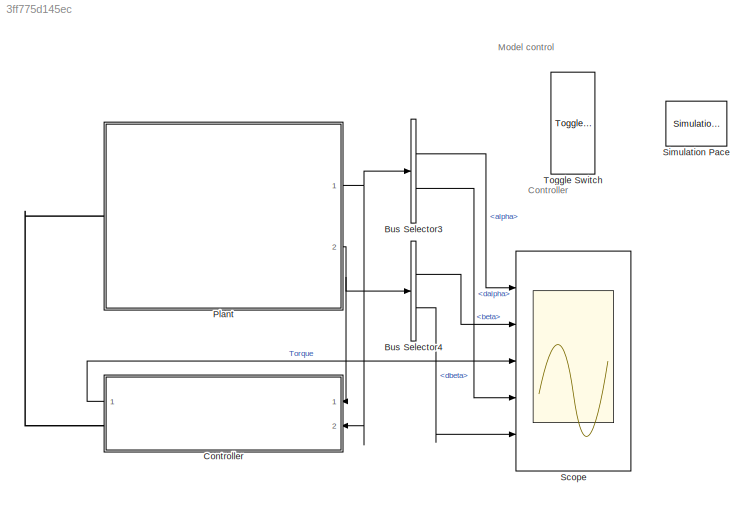
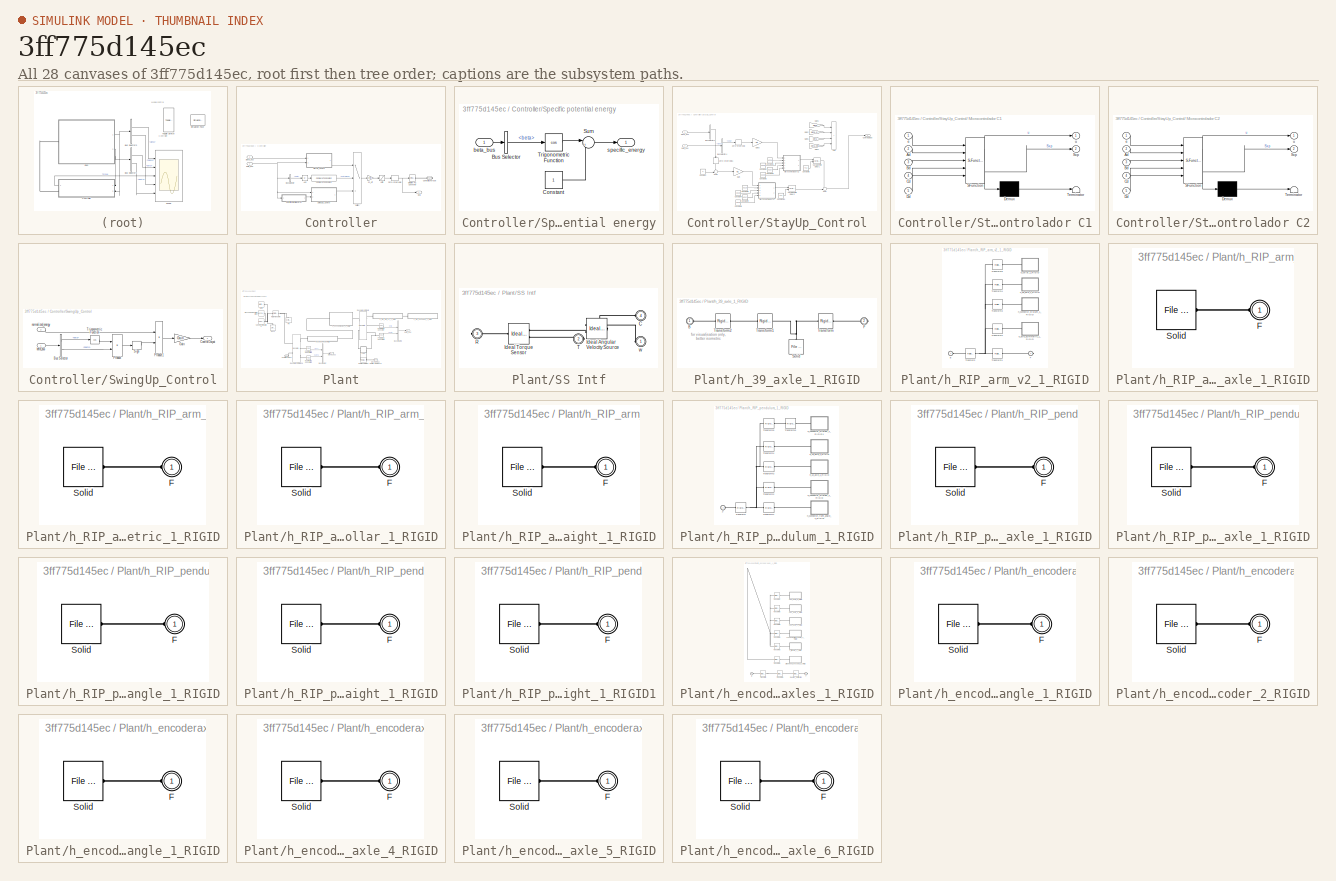
[diagram: thumbnail index - all 28 canvases of the model, root first then tree order]
MODEL slx_3ff775d145ec
KIND model
CONFIG AbsTol = auto
CONFIG EnableMultiTasking = on
CONFIG FixedStep = auto
CONFIG MaxStep = 1e-3
CONFIG MinStep = auto
CONFIG PreLoadFcn = RotaryPendulum_PARAM
CONFIG RelTol = 1e-3
CONFIG SampleTimeConstraint = Unconstrained
CONFIG Solver = ode15s
CONFIG SolverName = ode15s
CONFIG StartTime = 0.0
CONFIG StopTime = 60
BLOCK [BusSelector] Bus Selector3
  OutputSignals = alpha,dalpha
  Ports = [1, 2]
BLOCK [BusSelector] Bus Selector4
  OutputSignals = beta,dbeta
  Ports = [1, 2]
BLOCK [SubSystem] Controller
  Ports = [2, 1, 0, 0, 0, 0, 1]
  RequestExecContextInheritance = off
BLOCK [Abs] Controller/Abs
  SaturateOnIntegerOverflow = off
BLOCK [BusSelector] Controller/Bus Selector
  OutputSignals = beta
  Ports = [1, 1]
BLOCK [Reference] Controller/Compare To Constant  REF=simulink/Logic and Bit
Operations/Compare
To Constant
  Ports = [1, 1]
  SourceBlock = simulink/Logic and Bit\nOperations/Compare\nTo Constant
  SourceProductBaseCode = SL
  SourceType = Compare To Constant
BLOCK [PMIOPort] Controller/ControlledTorque
  Side = Right
BLOCK [Saturate] Controller/Limit
  LowerLimit = -0.1e3
  UpperLimit = 0.1e3
BLOCK [Outport] Controller/Out1
  VectorParamsAs1DForOutWhenUnconnected = off
BLOCK [Reference] Controller/Simulink-PS Converter  REF=nesl_utility/Simulink-PS
Converter
  Ports = [1, 0, 0, 0, 0, 0, 1]
  SourceBlock = nesl_utility/Simulink-PS\nConverter
  SourceProductBaseCode = SS
  SourceType = Simulink-PS\nConverter
BLOCK [SubSystem] Controller/Specific potential energy
  Ports = [1, 1]
  RequestExecContextInheritance = off
BLOCK [BusSelector] Controller/Specific potential energy/Bus Selector
  OutputSignals = beta
  Ports = [1, 1]
BLOCK [Constant] Controller/Specific potential energy/Constant
BLOCK [Sum] Controller/Specific potential energy/Sum
  Inputs = |+-
  Ports = [2, 1]
BLOCK [Trigonometry] Controller/Specific potential energy/Trigonometric Function
  Operator = cos
  Ports = [1, 1]
BLOCK [Inport] Controller/Specific potential energy/beta_bus
BLOCK [Outport] Controller/Specific potential energy/specific_energy
  VectorParamsAs1DForOutWhenUnconnected = off
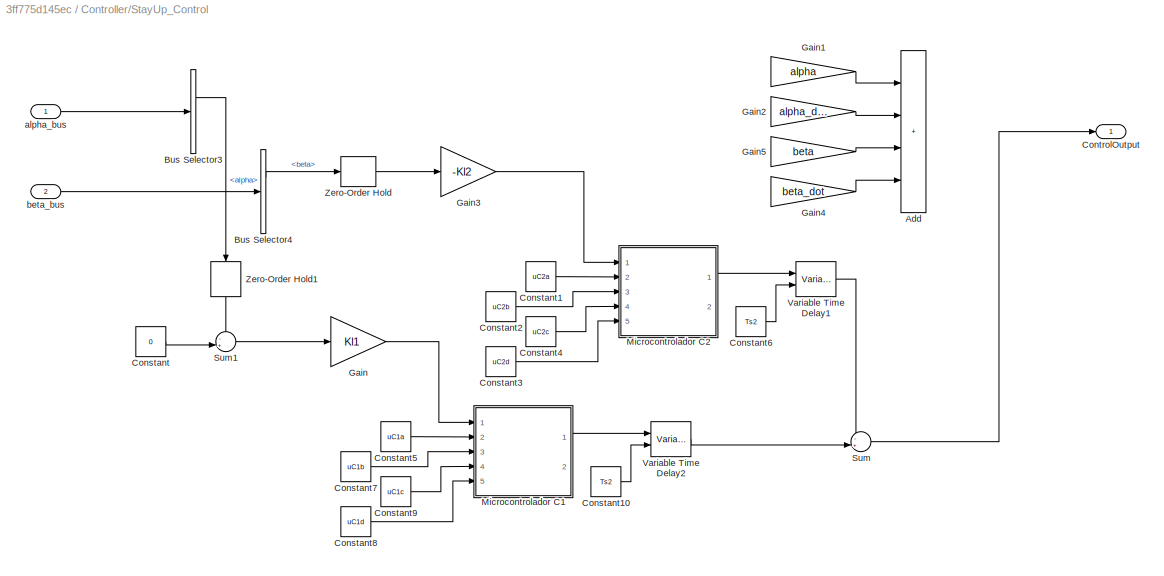
BLOCK [SubSystem] Controller/StayUp_Control
  Ports = [2, 1]
  RequestExecContextInheritance = off
BLOCK [SubSystem] Controller/StayUp_Control/ Microcontrolador C1
  ErrorFcn = Stateflow.Translate.translate
  NameLocation = top
  PermitHierarchicalResolution = ExplicitOnly
  Ports = [5, 2]
  RequestExecContextInheritance = off
  SFBlockType = MATLAB Function
  SystemSampleTime = Ts2
  TreatAsAtomicUnit = on
BLOCK [Demux] Controller/StayUp_Control/ Microcontrolador C1/ Demux 
  Outputs = 1
  Ports = [1, 1]
BLOCK [S-Function] Controller/StayUp_Control/ Microcontrolador C1/ SFunction 
  EnableBusSupport = on
  FunctionName = sf_sfun
  PortCounts = [5 3]
  Ports = [5, 3]
  SFcnIsStateOwnerBlock = off
  SFunctionDeploymentMode = off
  Tag = Stateflow S-Function 1
BLOCK [Terminator] Controller/StayUp_Control/ Microcontrolador C1/ Terminator 
BLOCK [Inport] Controller/StayUp_Control/ Microcontrolador C1/Ad
  Port = 2
BLOCK [Inport] Controller/StayUp_Control/ Microcontrolador C1/Bd
  Port = 3
BLOCK [Inport] Controller/StayUp_Control/ Microcontrolador C1/Cd
  Port = 4
BLOCK [Inport] Controller/StayUp_Control/ Microcontrolador C1/Dd
  Port = 5
BLOCK [Outport] Controller/StayUp_Control/ Microcontrolador C1/Sxp
  Port = 2
BLOCK [Inport] Controller/StayUp_Control/ Microcontrolador C1/e
BLOCK [Outport] Controller/StayUp_Control/ Microcontrolador C1/u
BLOCK [SubSystem] Controller/StayUp_Control/ Microcontrolador C2
  ErrorFcn = Stateflow.Translate.translate
  NameLocation = top
  PermitHierarchicalResolution = ExplicitOnly
  Ports = [5, 2]
  RequestExecContextInheritance = off
  SFBlockType = MATLAB Function
  SystemSampleTime = Ts2
  TreatAsAtomicUnit = on
BLOCK [Demux] Controller/StayUp_Control/ Microcontrolador C2/ Demux 
  Outputs = 1
  Ports = [1, 1]
BLOCK [S-Function] Controller/StayUp_Control/ Microcontrolador C2/ SFunction 
  EnableBusSupport = on
  FunctionName = sf_sfun
  PortCounts = [5 3]
  Ports = [5, 3]
  SFcnIsStateOwnerBlock = off
  SFunctionDeploymentMode = off
  Tag = Stateflow S-Function 2
BLOCK [Terminator] Controller/StayUp_Control/ Microcontrolador C2/ Terminator 
BLOCK [Inport] Controller/StayUp_Control/ Microcontrolador C2/Ad
  Port = 2
BLOCK [Inport] Controller/StayUp_Control/ Microcontrolador C2/Bd
  Port = 3
BLOCK [Inport] Controller/StayUp_Control/ Microcontrolador C2/Cd
  Port = 4
BLOCK [Inport] Controller/StayUp_Control/ Microcontrolador C2/Dd
  Port = 5
BLOCK [Outport] Controller/StayUp_Control/ Microcontrolador C2/Sxp
  Port = 2
BLOCK [Inport] Controller/StayUp_Control/ Microcontrolador C2/e
BLOCK [Outport] Controller/StayUp_Control/ Microcontrolador C2/u
BLOCK [Sum] Controller/StayUp_Control/Add
  IconShape = rectangular
  Inputs = ++++
  Ports = [4, 1]
BLOCK [BusSelector] Controller/StayUp_Control/Bus Selector3
  OutputSignals = alpha,dalpha
  Ports = [1, 2]
BLOCK [BusSelector] Controller/StayUp_Control/Bus Selector4
  OutputSignals = beta,dbeta
  Ports = [1, 2]
BLOCK [Constant] Controller/StayUp_Control/Constant
  Value = 0
BLOCK [Constant] Controller/StayUp_Control/Constant1
  Value = uC2a
BLOCK [Constant] Controller/StayUp_Control/Constant10
  Value = Ts2
BLOCK [Constant] Controller/StayUp_Control/Constant2
  Value = uC2b
BLOCK [Constant] Controller/StayUp_Control/Constant3
  Value = uC2d
BLOCK [Constant] Controller/StayUp_Control/Constant4
  Value = uC2c
BLOCK [Constant] Controller/StayUp_Control/Constant5
  Value = uC1a
BLOCK [Constant] Controller/StayUp_Control/Constant6
  Value = Ts2
BLOCK [Constant] Controller/StayUp_Control/Constant7
  Value = uC1b
BLOCK [Constant] Controller/StayUp_Control/Constant8
  Value = uC1d
BLOCK [Constant] Controller/StayUp_Control/Constant9
  Value = uC1c
BLOCK [Outport] Controller/StayUp_Control/ControlOutput
  VectorParamsAs1DForOutWhenUnconnected = off
BLOCK [Gain] Controller/StayUp_Control/Gain
  Gain = Kl1
BLOCK [Gain] Controller/StayUp_Control/Gain1
  Gain = alpha
BLOCK [Gain] Controller/StayUp_Control/Gain2
  Gain = alpha_dot
  NameLocation = top
BLOCK [Gain] Controller/StayUp_Control/Gain3
  Gain = -Kl2
BLOCK [Gain] Controller/StayUp_Control/Gain4
  Gain = beta_dot
BLOCK [Gain] Controller/StayUp_Control/Gain5
  Gain = beta
BLOCK [Sum] Controller/StayUp_Control/Sum
  Inputs = -+|
  Ports = [2, 1]
BLOCK [Sum] Controller/StayUp_Control/Sum1
  Inputs = -+|
  Ports = [2, 1]
BLOCK [VariableTransportDelay] Controller/StayUp_Control/Variable Time Delay1
  MaximumDelay = 10
  Ports = [2, 1]
BLOCK [VariableTransportDelay] Controller/StayUp_Control/Variable Time Delay2
  MaximumDelay = 10
  Ports = [2, 1]
BLOCK [ZeroOrderHold] Controller/StayUp_Control/Zero-Order Hold
  SampleTime = Ts2
BLOCK [ZeroOrderHold] Controller/StayUp_Control/Zero-Order Hold1
  NameLocation = left
  SampleTime = Ts2
BLOCK [Inport] Controller/StayUp_Control/alpha_bus
BLOCK [Inport] Controller/StayUp_Control/beta_bus
  NameLocation = top
  Port = 2
BLOCK [SubSystem] Controller/SwingUp_Control
  Ports = [2, 1]
  RequestExecContextInheritance = off
BLOCK [BusSelector] Controller/SwingUp_Control/Bus Selector
  OutputSignals = beta,dbeta
  Ports = [1, 2]
BLOCK [Outport] Controller/SwingUp_Control/ControlOutput
  VectorParamsAs1DForOutWhenUnconnected = off
BLOCK [Gain] Controller/SwingUp_Control/Gain
  Gain = Gain
BLOCK [Product] Controller/SwingUp_Control/Product
  Ports = [2, 1]
BLOCK [Product] Controller/SwingUp_Control/Product1
  Ports = [2, 1]
BLOCK [Signum] Controller/SwingUp_Control/Sign
BLOCK [Trigonometry] Controller/SwingUp_Control/Trigonometric Function
  Operator = cos
  Ports = [1, 1]
BLOCK [Inport] Controller/SwingUp_Control/beta_bus
BLOCK [Inport] Controller/SwingUp_Control/normalized_energy
  Port = 2
BLOCK [Switch] Controller/Switch
  Criteria = u2 > Threshold
  InputSameDT = off
  SaturateOnIntegerOverflow = off
BLOCK [ZeroOrderHold] Controller/Zero-Order Hold
  SampleTime = Ts2
BLOCK [Inport] Controller/alpha_bus
  Port = 2
BLOCK [Inport] Controller/beta_bus
BLOCK [Gain] Controller/on_off
  Gain = controller_on_off
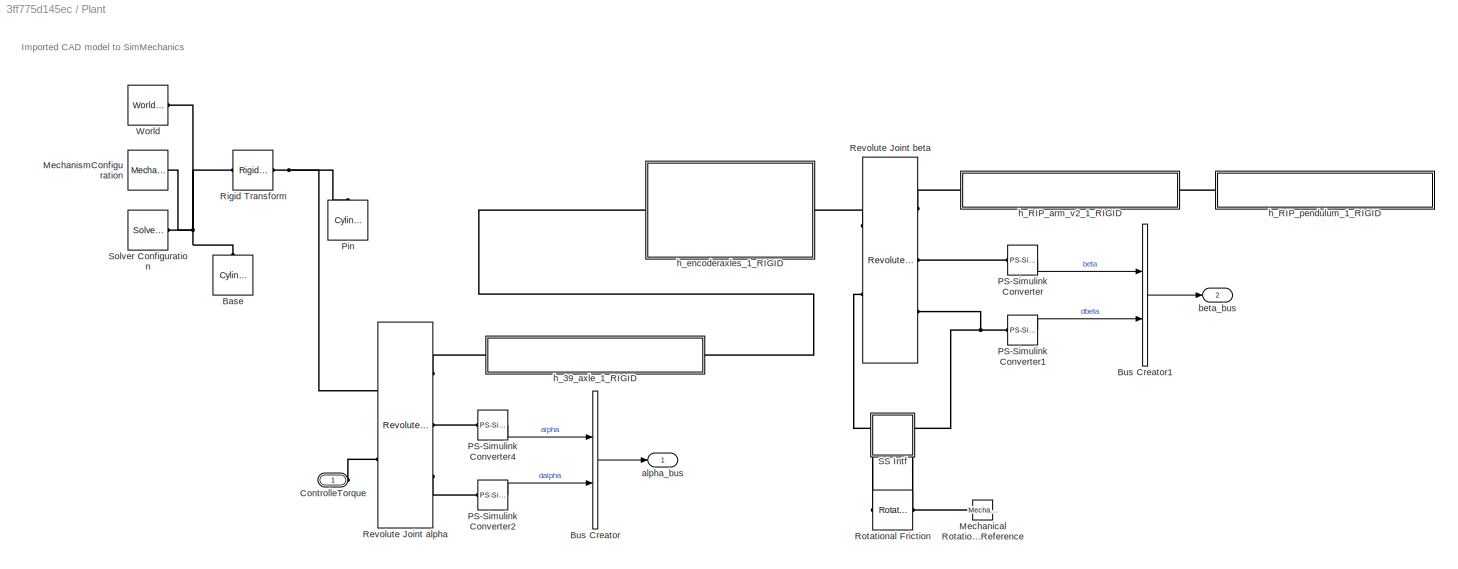
BLOCK [SubSystem] Plant
  Ports = [0, 2, 0, 0, 0, 1]
  RequestExecContextInheritance = off
BLOCK [Reference] Plant/Base  REF=sm_lib/Body Elements/Cylindrical Solid
  NameLocation = right
  Ports = [0, 0, 0, 0, 0, 0, 1]
  SourceBlock = sm_lib/Body Elements/Cylindrical Solid
  SourceProductBaseCode = MS
  SourceType = Cylindrical Solid
BLOCK [BusCreator] Plant/Bus Creator
  DisplayOption = bar
  InheritFromInputs = on
  Inputs = 2
  Ports = [2, 1]
BLOCK [BusCreator] Plant/Bus Creator1
  DisplayOption = bar
  InheritFromInputs = on
  Inputs = 2
  Ports = [2, 1]
BLOCK [PMIOPort] Plant/ControlleTorque
  NameLocation = top
  Side = Left
BLOCK [Reference] Plant/Mechanical Rotational Reference  REF=fl_lib/Mechanical/Rotational Elements/Mechanical
Rotational Reference
  NameLocation = top
  Ports = [0, 0, 0, 0, 0, 1]
  SourceBlock = fl_lib/Mechanical/Rotational Elements/Mechanical\nRotational Reference
  SourceProductBaseCode = SS
  SourceType = Mechanical\nRotational Reference
BLOCK [Reference] Plant/MechanismConfiguration  REF=sm_lib/Utilities/Mechanism
Configuration
  Ports = [0, 0, 0, 0, 0, 0, 1]
  SourceBlock = sm_lib/Utilities/Mechanism\nConfiguration
  SourceProductBaseCode = MS
  SourceType = Mechanism\nConfiguration
BLOCK [Reference] Plant/PS-Simulink Converter  REF=nesl_utility/PS-Simulink
Converter
  NameLocation = top
  Ports = [0, 1, 0, 0, 0, 1]
  SourceBlock = nesl_utility/PS-Simulink\nConverter
  SourceProductBaseCode = SS
  SourceType = PS-Simulink\nConverter
BLOCK [Reference] Plant/PS-Simulink Converter1  REF=nesl_utility/PS-Simulink
Converter
  Ports = [0, 1, 0, 0, 0, 1]
  SourceBlock = nesl_utility/PS-Simulink\nConverter
  SourceProductBaseCode = SS
  SourceType = PS-Simulink\nConverter
BLOCK [Reference] Plant/PS-Simulink Converter2  REF=nesl_utility/PS-Simulink
Converter
  Ports = [0, 1, 0, 0, 0, 1]
  SourceBlock = nesl_utility/PS-Simulink\nConverter
  SourceProductBaseCode = SS
  SourceType = PS-Simulink\nConverter
BLOCK [Reference] Plant/PS-Simulink Converter4  REF=nesl_utility/PS-Simulink
Converter
  Ports = [0, 1, 0, 0, 0, 1]
  SourceBlock = nesl_utility/PS-Simulink\nConverter
  SourceProductBaseCode = SS
  SourceType = PS-Simulink\nConverter
BLOCK [Reference] Plant/Pin  REF=sm_lib/Body Elements/Cylindrical Solid
  NameLocation = right
  Ports = [0, 0, 0, 0, 0, 0, 1]
  SourceBlock = sm_lib/Body Elements/Cylindrical Solid
  SourceProductBaseCode = MS
  SourceType = Cylindrical Solid
BLOCK [Reference] Plant/Revolute Joint alpha  REF=sm_lib/Joints/Revolute Joint
  Ports = [0, 0, 0, 0, 0, 2, 3]
  SourceBlock = sm_lib/Joints/Revolute Joint
  SourceProductBaseCode = MS
  SourceType = Revolute Joint
BLOCK [Reference] Plant/Revolute Joint beta  REF=sm_lib/Joints/Revolute Joint
  Ports = [0, 0, 0, 0, 0, 2, 3]
  SourceBlock = sm_lib/Joints/Revolute Joint
  SourceProductBaseCode = MS
  SourceType = Revolute Joint
BLOCK [Reference] Plant/Rigid Transform  REF=sm_lib/Frames and
Transforms/Rigid
Transform
  NameLocation = top
  Ports = [0, 0, 0, 0, 0, 1, 1]
  SourceBlock = sm_lib/Frames and\nTransforms/Rigid\nTransform
  SourceProductBaseCode = MS
  SourceType = Rigid\nTransform
BLOCK [Reference] Plant/Rotational Friction  REF=fl_lib/Mechanical/Rotational Elements/Rotational Friction
  Ports = [0, 0, 0, 0, 0, 1, 1]
  SourceBlock = fl_lib/Mechanical/Rotational Elements/Rotational Friction
  SourceProductBaseCode = SS
  SourceType = Rotational Friction
BLOCK [SubSystem] Plant/SS Intf
  Ports = [0, 0, 0, 0, 0, 2, 2]
  RequestExecContextInheritance = off
BLOCK [PMIOPort] Plant/SS Intf/C
  Port = 4
  Side = Left
BLOCK [Reference] Plant/SS Intf/Ideal Angular Velocity Source  REF=fl_lib/Mechanical/Mechanical Sources/Ideal Angular
Velocity Source
  NameLocation = top
  Ports = [0, 0, 0, 0, 0, 1, 2]
  SourceBlock = fl_lib/Mechanical/Mechanical Sources/Ideal Angular\nVelocity Source
  SourceProductBaseCode = SS
  SourceType = Ideal Angular\nVelocity Source
BLOCK [Reference] Plant/SS Intf/Ideal Torque Sensor  REF=fl_lib/Mechanical/Mechanical Sensors/Ideal Torque Sensor
  Ports = [0, 0, 0, 0, 0, 1, 2]
  SourceBlock = fl_lib/Mechanical/Mechanical Sensors/Ideal Torque Sensor
  SourceProductBaseCode = SS
  SourceType = Ideal Torque Sensor
BLOCK [PMIOPort] Plant/SS Intf/R
  Port = 3
  Side = Right
BLOCK [PMIOPort] Plant/SS Intf/T
  Port = 2
  Side = Right
BLOCK [PMIOPort] Plant/SS Intf/w
  Side = Left
BLOCK [Reference] Plant/Solver Configuration  REF=nesl_utility/Solver
Configuration
  Ports = [0, 0, 0, 0, 0, 0, 1]
  SourceBlock = nesl_utility/Solver\nConfiguration
  SourceProductBaseCode = SS
  SourceType = Solver\nConfiguration
BLOCK [Reference] Plant/World  REF=sm_lib/Frames and
Transforms/World Frame
  Ports = [0, 0, 0, 0, 0, 0, 1]
  SourceBlock = sm_lib/Frames and\nTransforms/World Frame
  SourceProductBaseCode = MS
  SourceType = World Frame
BLOCK [Outport] Plant/alpha_bus
  NameLocation = top
  VectorParamsAs1DForOutWhenUnconnected = off
BLOCK [Outport] Plant/beta_bus
  NameLocation = top
  Port = 2
  VectorParamsAs1DForOutWhenUnconnected = off
BLOCK [SubSystem] Plant/h_39_axle_1_RIGID
  Ports = [0, 0, 0, 0, 0, 1, 1]
  RequestExecContextInheritance = off
BLOCK [PMIOPort] Plant/h_39_axle_1_RIGID/B
  Side = Left
BLOCK [PMIOPort] Plant/h_39_axle_1_RIGID/F
  Port = 2
  Side = Right
BLOCK [Reference] Plant/h_39_axle_1_RIGID/Solid  REF=sm_lib/Body Elements/File Solid
  NameLocation = right
  Ports = [0, 0, 0, 0, 0, 0, 1]
  SourceBlock = sm_lib/Body Elements/File Solid
  SourceProductBaseCode = MS
  SourceType = File Solid
BLOCK [Reference] Plant/h_39_axle_1_RIGID/Transform  REF=sm_lib/Frames and
Transforms/Rigid
Transform
  Ports = [0, 0, 0, 0, 0, 1, 1]
  SourceBlock = sm_lib/Frames and\nTransforms/Rigid\nTransform
  SourceProductBaseCode = MS
  SourceType = Rigid\nTransform
BLOCK [Reference] Plant/h_39_axle_1_RIGID/Transform1  REF=sm_lib/Frames and
Transforms/Rigid
Transform
  Ports = [0, 0, 0, 0, 0, 1, 1]
  SourceBlock = sm_lib/Frames and\nTransforms/Rigid\nTransform
  SourceProductBaseCode = MS
  SourceType = Rigid\nTransform
BLOCK [Reference] Plant/h_39_axle_1_RIGID/Transform2  REF=sm_lib/Frames and
Transforms/Rigid
Transform
  Ports = [0, 0, 0, 0, 0, 1, 1]
  SourceBlock = sm_lib/Frames and\nTransforms/Rigid\nTransform
  SourceProductBaseCode = MS
  SourceType = Rigid\nTransform
BLOCK [SubSystem] Plant/h_RIP_arm_v2_1_RIGID
  Ports = [0, 0, 0, 0, 0, 1, 1]
  RequestExecContextInheritance = off
BLOCK [PMIOPort] Plant/h_RIP_arm_v2_1_RIGID/B
  NameLocation = top
  Side = Left
BLOCK [PMIOPort] Plant/h_RIP_arm_v2_1_RIGID/F
  Port = 2
  Side = Right
BLOCK [Reference] Plant/h_RIP_arm_v2_1_RIGID/Transform  REF=sm_lib/Frames and
Transforms/Rigid
Transform
  Ports = [0, 0, 0, 0, 0, 1, 1]
  SourceBlock = sm_lib/Frames and\nTransforms/Rigid\nTransform
  SourceProductBaseCode = MS
  SourceType = Rigid\nTransform
BLOCK [Reference] Plant/h_RIP_arm_v2_1_RIGID/Transform1  REF=sm_lib/Frames and
Transforms/Rigid
Transform
  Ports = [0, 0, 0, 0, 0, 1, 1]
  SourceBlock = sm_lib/Frames and\nTransforms/Rigid\nTransform
  SourceProductBaseCode = MS
  SourceType = Rigid\nTransform
BLOCK [Reference] Plant/h_RIP_arm_v2_1_RIGID/Transform2  REF=sm_lib/Frames and
Transforms/Rigid
Transform
  Ports = [0, 0, 0, 0, 0, 1, 1]
  SourceBlock = sm_lib/Frames and\nTransforms/Rigid\nTransform
  SourceProductBaseCode = MS
  SourceType = Rigid\nTransform
BLOCK [Reference] Plant/h_RIP_arm_v2_1_RIGID/Transform3  REF=sm_lib/Frames and
Transforms/Rigid
Transform
  Ports = [0, 0, 0, 0, 0, 1, 1]
  SourceBlock = sm_lib/Frames and\nTransforms/Rigid\nTransform
  SourceProductBaseCode = MS
  SourceType = Rigid\nTransform
BLOCK [Reference] Plant/h_RIP_arm_v2_1_RIGID/Transform4  REF=sm_lib/Frames and
Transforms/Rigid
Transform
  Ports = [0, 0, 0, 0, 0, 1, 1]
  SourceBlock = sm_lib/Frames and\nTransforms/Rigid\nTransform
  SourceProductBaseCode = MS
  SourceType = Rigid\nTransform
BLOCK [Reference] Plant/h_RIP_arm_v2_1_RIGID/Transform5  REF=sm_lib/Frames and
Transforms/Rigid
Transform
  Ports = [0, 0, 0, 0, 0, 1, 1]
  SourceBlock = sm_lib/Frames and\nTransforms/Rigid\nTransform
  SourceProductBaseCode = MS
  SourceType = Rigid\nTransform
BLOCK [SubSystem] Plant/h_RIP_arm_v2_1_RIGID/h_39_axle_1_RIGID
  Ports = [0, 0, 0, 0, 0, 1]
  RequestExecContextInheritance = off
BLOCK [PMIOPort] Plant/h_RIP_arm_v2_1_RIGID/h_39_axle_1_RIGID/F
  Side = Left
BLOCK [Reference] Plant/h_RIP_arm_v2_1_RIGID/h_39_axle_1_RIGID/Solid  REF=sm_lib/Body Elements/File Solid
  Ports = [0, 0, 0, 0, 0, 0, 1]
  SourceBlock = sm_lib/Body Elements/File Solid
  SourceProductBaseCode = MS
  SourceType = File Solid
BLOCK [SubSystem] Plant/h_RIP_arm_v2_1_RIGID/h_axle_asymmetric_1_RIGID
  Ports = [0, 0, 0, 0, 0, 1]
  RequestExecContextInheritance = off
BLOCK [PMIOPort] Plant/h_RIP_arm_v2_1_RIGID/h_axle_asymmetric_1_RIGID/F
  Side = Left
BLOCK [Reference] Plant/h_RIP_arm_v2_1_RIGID/h_axle_asymmetric_1_RIGID/Solid  REF=sm_lib/Body Elements/File Solid
  Ports = [0, 0, 0, 0, 0, 0, 1]
  SourceBlock = sm_lib/Body Elements/File Solid
  SourceProductBaseCode = MS
  SourceType = File Solid
BLOCK [SubSystem] Plant/h_RIP_arm_v2_1_RIGID/h_collar_1_RIGID
  Ports = [0, 0, 0, 0, 0, 1]
  RequestExecContextInheritance = off
BLOCK [PMIOPort] Plant/h_RIP_arm_v2_1_RIGID/h_collar_1_RIGID/F
  Side = Left
BLOCK [Reference] Plant/h_RIP_arm_v2_1_RIGID/h_collar_1_RIGID/Solid  REF=sm_lib/Body Elements/File Solid
  Ports = [0, 0, 0, 0, 0, 0, 1]
  SourceBlock = sm_lib/Body Elements/File Solid
  SourceProductBaseCode = MS
  SourceType = File Solid
BLOCK [SubSystem] Plant/h_RIP_arm_v2_1_RIGID/h_connector_straight_1_RIGID
  Ports = [0, 0, 0, 0, 0, 1]
  RequestExecContextInheritance = off
BLOCK [PMIOPort] Plant/h_RIP_arm_v2_1_RIGID/h_connector_straight_1_RIGID/F
  Side = Left
BLOCK [Reference] Plant/h_RIP_arm_v2_1_RIGID/h_connector_straight_1_RIGID/Solid  REF=sm_lib/Body Elements/File Solid
  Ports = [0, 0, 0, 0, 0, 0, 1]
  SourceBlock = sm_lib/Body Elements/File Solid
  SourceProductBaseCode = MS
  SourceType = File Solid
BLOCK [SubSystem] Plant/h_RIP_pendulum_1_RIGID
  Ports = [0, 0, 0, 0, 0, 1]
  RequestExecContextInheritance = off
BLOCK [PMIOPort] Plant/h_RIP_pendulum_1_RIGID/F
  Side = Left
BLOCK [Reference] Plant/h_RIP_pendulum_1_RIGID/Transform  REF=sm_lib/Frames and
Transforms/Rigid
Transform
  Ports = [0, 0, 0, 0, 0, 1, 1]
  SourceBlock = sm_lib/Frames and\nTransforms/Rigid\nTransform
  SourceProductBaseCode = MS
  SourceType = Rigid\nTransform
BLOCK [Reference] Plant/h_RIP_pendulum_1_RIGID/Transform1  REF=sm_lib/Frames and
Transforms/Rigid
Transform
  Ports = [0, 0, 0, 0, 0, 1, 1]
  SourceBlock = sm_lib/Frames and\nTransforms/Rigid\nTransform
  SourceProductBaseCode = MS
  SourceType = Rigid\nTransform
BLOCK [Reference] Plant/h_RIP_pendulum_1_RIGID/Transform2  REF=sm_lib/Frames and
Transforms/Rigid
Transform
  Ports = [0, 0, 0, 0, 0, 1, 1]
  SourceBlock = sm_lib/Frames and\nTransforms/Rigid\nTransform
  SourceProductBaseCode = MS
  SourceType = Rigid\nTransform
BLOCK [Reference] Plant/h_RIP_pendulum_1_RIGID/Transform3  REF=sm_lib/Frames and
Transforms/Rigid
Transform
  Ports = [0, 0, 0, 0, 0, 1, 1]
  SourceBlock = sm_lib/Frames and\nTransforms/Rigid\nTransform
  SourceProductBaseCode = MS
  SourceType = Rigid\nTransform
BLOCK [Reference] Plant/h_RIP_pendulum_1_RIGID/Transform4  REF=sm_lib/Frames and
Transforms/Rigid
Transform
  Ports = [0, 0, 0, 0, 0, 1, 1]
  SourceBlock = sm_lib/Frames and\nTransforms/Rigid\nTransform
  SourceProductBaseCode = MS
  SourceType = Rigid\nTransform
BLOCK [Reference] Plant/h_RIP_pendulum_1_RIGID/Transform5  REF=sm_lib/Frames and
Transforms/Rigid
Transform
  Ports = [0, 0, 0, 0, 0, 1, 1]
  SourceBlock = sm_lib/Frames and\nTransforms/Rigid\nTransform
  SourceProductBaseCode = MS
  SourceType = Rigid\nTransform
BLOCK [Reference] Plant/h_RIP_pendulum_1_RIGID/Transform6  REF=sm_lib/Frames and
Transforms/Rigid
Transform
  Ports = [0, 0, 0, 0, 0, 1, 1]
  SourceBlock = sm_lib/Frames and\nTransforms/Rigid\nTransform
  SourceProductBaseCode = MS
  SourceType = Rigid\nTransform
BLOCK [SubSystem] Plant/h_RIP_pendulum_1_RIGID/h_10_axle_1_RIGID
  Ports = [0, 0, 0, 0, 0, 1]
  RequestExecContextInheritance = off
BLOCK [PMIOPort] Plant/h_RIP_pendulum_1_RIGID/h_10_axle_1_RIGID/F
  Side = Left
BLOCK [Reference] Plant/h_RIP_pendulum_1_RIGID/h_10_axle_1_RIGID/Solid  REF=sm_lib/Body Elements/File Solid
  Ports = [0, 0, 0, 0, 0, 0, 1]
  SourceBlock = sm_lib/Body Elements/File Solid
  SourceProductBaseCode = MS
  SourceType = File Solid
BLOCK [SubSystem] Plant/h_RIP_pendulum_1_RIGID/h_79_axle_1_RIGID
  Ports = [0, 0, 0, 0, 0, 1]
  RequestExecContextInheritance = off
BLOCK [PMIOPort] Plant/h_RIP_pendulum_1_RIGID/h_79_axle_1_RIGID/F
  Side = Left
BLOCK [Reference] Plant/h_RIP_pendulum_1_RIGID/h_79_axle_1_RIGID/Solid  REF=sm_lib/Body Elements/File Solid
  Ports = [0, 0, 0, 0, 0, 0, 1]
  SourceBlock = sm_lib/Body Elements/File Solid
  SourceProductBaseCode = MS
  SourceType = File Solid
BLOCK [SubSystem] Plant/h_RIP_pendulum_1_RIGID/h_connector_right_angle_1_RIGID
  Ports = [0, 0, 0, 0, 0, 1]
  RequestExecContextInheritance = off
BLOCK [PMIOPort] Plant/h_RIP_pendulum_1_RIGID/h_connector_right_angle_1_RIGID/F
  Side = Left
BLOCK [Reference] Plant/h_RIP_pendulum_1_RIGID/h_connector_right_angle_1_RIGID/Solid  REF=sm_lib/Body Elements/File Solid
  Ports = [0, 0, 0, 0, 0, 0, 1]
  SourceBlock = sm_lib/Body Elements/File Solid
  SourceProductBaseCode = MS
  SourceType = File Solid
BLOCK [SubSystem] Plant/h_RIP_pendulum_1_RIGID/h_connector_straight_1_RIGID
  Ports = [0, 0, 0, 0, 0, 1]
  RequestExecContextInheritance = off
BLOCK [PMIOPort] Plant/h_RIP_pendulum_1_RIGID/h_connector_straight_1_RIGID/F
  Side = Left
BLOCK [Reference] Plant/h_RIP_pendulum_1_RIGID/h_connector_straight_1_RIGID/Solid  REF=sm_lib/Body Elements/File Solid
  Ports = [0, 0, 0, 0, 0, 0, 1]
  SourceBlock = sm_lib/Body Elements/File Solid
  SourceProductBaseCode = MS
  SourceType = File Solid
BLOCK [SubSystem] Plant/h_RIP_pendulum_1_RIGID/h_connector_straight_1_RIGID1
  Ports = [0, 0, 0, 0, 0, 1]
  RequestExecContextInheritance = off
BLOCK [PMIOPort] Plant/h_RIP_pendulum_1_RIGID/h_connector_straight_1_RIGID1/F
  Side = Left
BLOCK [Reference] Plant/h_RIP_pendulum_1_RIGID/h_connector_straight_1_RIGID1/Solid  REF=sm_lib/Body Elements/File Solid
  Ports = [0, 0, 0, 0, 0, 0, 1]
  SourceBlock = sm_lib/Body Elements/File Solid
  SourceProductBaseCode = MS
  SourceType = File Solid
BLOCK [SubSystem] Plant/h_encoderaxles_1_RIGID
  Ports = [0, 0, 0, 0, 0, 1, 1]
  RequestExecContextInheritance = off
BLOCK [PMIOPort] Plant/h_encoderaxles_1_RIGID/B
  Side = Left
BLOCK [Reference] Plant/h_encoderaxles_1_RIGID/Design_Correction  REF=sm_lib/Frames and
Transforms/Rigid
Transform
  Ports = [0, 0, 0, 0, 0, 1, 1]
  SourceBlock = sm_lib/Frames and\nTransforms/Rigid\nTransform
  SourceProductBaseCode = MS
  SourceType = Rigid\nTransform
BLOCK [PMIOPort] Plant/h_encoderaxles_1_RIGID/F
  Port = 2
  Side = Right
BLOCK [Reference] Plant/h_encoderaxles_1_RIGID/Transform  REF=sm_lib/Frames and
Transforms/Rigid
Transform
  Ports = [0, 0, 0, 0, 0, 1, 1]
  SourceBlock = sm_lib/Frames and\nTransforms/Rigid\nTransform
  SourceProductBaseCode = MS
  SourceType = Rigid\nTransform
BLOCK [Reference] Plant/h_encoderaxles_1_RIGID/Transform1  REF=sm_lib/Frames and
Transforms/Rigid
Transform
  Ports = [0, 0, 0, 0, 0, 1, 1]
  SourceBlock = sm_lib/Frames and\nTransforms/Rigid\nTransform
  SourceProductBaseCode = MS
  SourceType = Rigid\nTransform
BLOCK [Reference] Plant/h_encoderaxles_1_RIGID/Transform2  REF=sm_lib/Frames and
Transforms/Rigid
Transform
  Ports = [0, 0, 0, 0, 0, 1, 1]
  SourceBlock = sm_lib/Frames and\nTransforms/Rigid\nTransform
  SourceProductBaseCode = MS
  SourceType = Rigid\nTransform
BLOCK [Reference] Plant/h_encoderaxles_1_RIGID/Transform3  REF=sm_lib/Frames and
Transforms/Rigid
Transform
  Ports = [0, 0, 0, 0, 0, 1, 1]
  SourceBlock = sm_lib/Frames and\nTransforms/Rigid\nTransform
  SourceProductBaseCode = MS
  SourceType = Rigid\nTransform
BLOCK [Reference] Plant/h_encoderaxles_1_RIGID/Transform4  REF=sm_lib/Frames and
Transforms/Rigid
Transform
  Ports = [0, 0, 0, 0, 0, 1, 1]
  SourceBlock = sm_lib/Frames and\nTransforms/Rigid\nTransform
  SourceProductBaseCode = MS
  SourceType = Rigid\nTransform
BLOCK [Reference] Plant/h_encoderaxles_1_RIGID/Transform5  REF=sm_lib/Frames and
Transforms/Rigid
Transform
  Ports = [0, 0, 0, 0, 0, 1, 1]
  SourceBlock = sm_lib/Frames and\nTransforms/Rigid\nTransform
  SourceProductBaseCode = MS
  SourceType = Rigid\nTransform
BLOCK [Reference] Plant/h_encoderaxles_1_RIGID/Transform6  REF=sm_lib/Frames and
Transforms/Rigid
Transform
  Ports = [0, 0, 0, 0, 0, 1, 1]
  SourceBlock = sm_lib/Frames and\nTransforms/Rigid\nTransform
  SourceProductBaseCode = MS
  SourceType = Rigid\nTransform
BLOCK [Reference] Plant/h_encoderaxles_1_RIGID/Transform7  REF=sm_lib/Frames and
Transforms/Rigid
Transform
  Ports = [0, 0, 0, 0, 0, 1, 1]
  SourceBlock = sm_lib/Frames and\nTransforms/Rigid\nTransform
  SourceProductBaseCode = MS
  SourceType = Rigid\nTransform
BLOCK [SubSystem] Plant/h_encoderaxles_1_RIGID/connector_right_angle_1_RIGID
  Ports = [0, 0, 0, 0, 0, 1]
  RequestExecContextInheritance = off
BLOCK [PMIOPort] Plant/h_encoderaxles_1_RIGID/connector_right_angle_1_RIGID/F
  Side = Left
BLOCK [Reference] Plant/h_encoderaxles_1_RIGID/connector_right_angle_1_RIGID/Solid  REF=sm_lib/Body Elements/File Solid
  Ports = [0, 0, 0, 0, 0, 0, 1]
  SourceBlock = sm_lib/Body Elements/File Solid
  SourceProductBaseCode = MS
  SourceType = File Solid
BLOCK [SubSystem] Plant/h_encoderaxles_1_RIGID/glidewheel_encoder_2_RIGID
  Ports = [0, 0, 0, 0, 0, 1]
  RequestExecContextInheritance = off
BLOCK [PMIOPort] Plant/h_encoderaxles_1_RIGID/glidewheel_encoder_2_RIGID/F
  Side = Left
BLOCK [Reference] Plant/h_encoderaxles_1_RIGID/glidewheel_encoder_2_RIGID/Solid  REF=sm_lib/Body Elements/File Solid
  Ports = [0, 0, 0, 0, 0, 0, 1]
  SourceBlock = sm_lib/Body Elements/File Solid
  SourceProductBaseCode = MS
  SourceType = File Solid
BLOCK [SubSystem] Plant/h_encoderaxles_1_RIGID/h_triangle_1_RIGID
  Ports = [0, 0, 0, 0, 0, 1]
  RequestExecContextInheritance = off
BLOCK [PMIOPort] Plant/h_encoderaxles_1_RIGID/h_triangle_1_RIGID/F
  Side = Left
BLOCK [Reference] Plant/h_encoderaxles_1_RIGID/h_triangle_1_RIGID/Solid  REF=sm_lib/Body Elements/File Solid
  Ports = [0, 0, 0, 0, 0, 0, 1]
  SourceBlock = sm_lib/Body Elements/File Solid
  SourceProductBaseCode = MS
  SourceType = File Solid
BLOCK [SubSystem] Plant/h_encoderaxles_1_RIGID/x86_axle_4_RIGID
  Ports = [0, 0, 0, 0, 0, 1]
  RequestExecContextInheritance = off
BLOCK [PMIOPort] Plant/h_encoderaxles_1_RIGID/x86_axle_4_RIGID/F
  Side = Left
BLOCK [Reference] Plant/h_encoderaxles_1_RIGID/x86_axle_4_RIGID/Solid  REF=sm_lib/Body Elements/File Solid
  Ports = [0, 0, 0, 0, 0, 0, 1]
  SourceBlock = sm_lib/Body Elements/File Solid
  SourceProductBaseCode = MS
  SourceType = File Solid
BLOCK [SubSystem] Plant/h_encoderaxles_1_RIGID/x86_axle_5_RIGID
  Ports = [0, 0, 0, 0, 0, 1]
  RequestExecContextInheritance = off
BLOCK [PMIOPort] Plant/h_encoderaxles_1_RIGID/x86_axle_5_RIGID/F
  Side = Left
BLOCK [Reference] Plant/h_encoderaxles_1_RIGID/x86_axle_5_RIGID/Solid  REF=sm_lib/Body Elements/File Solid
  Ports = [0, 0, 0, 0, 0, 0, 1]
  SourceBlock = sm_lib/Body Elements/File Solid
  SourceProductBaseCode = MS
  SourceType = File Solid
BLOCK [SubSystem] Plant/h_encoderaxles_1_RIGID/x86_axle_6_RIGID
  Ports = [0, 0, 0, 0, 0, 1]
  RequestExecContextInheritance = off
BLOCK [PMIOPort] Plant/h_encoderaxles_1_RIGID/x86_axle_6_RIGID/F
  Side = Left
BLOCK [Reference] Plant/h_encoderaxles_1_RIGID/x86_axle_6_RIGID/Solid  REF=sm_lib/Body Elements/File Solid
  Ports = [0, 0, 0, 0, 0, 0, 1]
  SourceBlock = sm_lib/Body Elements/File Solid
  SourceProductBaseCode = MS
  SourceType = File Solid
BLOCK [Scope] Scope
  Floating = off
  NumInputPorts = 5
  Ports = [5]
  ScopeSpecificationString = Simulink.scopes.TimeScopeBlockCfg('CurrentConfiguration', extmgr.ConfigurationSet(extmgr.Configuration('Core','General UI',true,'FigureColor',[1 1 1]),extmgr.Configuration('Core','Source UI',true),extmgr.Configuration('Sources','WiredSimulink',true,'DataLoggingVariableName','Alfa','DataLogging',true,'DataLoggingSaveFormat','StructureWithTime'),extmgr.Configuration('Visuals','Time Domain',true,'Ser...<+6432ch>
BLOCK [Reference] Simulation Pace  REF=aerolibanimutils/Simulation Pace
  AttributesFormatString = %<SimulationPace> sec/sec
  Ports = []
  SourceBlock = aerolibanimutils/Simulation Pace
  SourceProductBaseCode = AE
  SourceType = Simulation Pace
BLOCK [ToggleSwitchBlock] Toggle Switch
ANNOTATION (root): Model control
ANNOTATION (root): Controller
ANNOTATION Plant: Add friction or any other model influencing forces/torques using Simscape
ANNOTATION Plant: Imported CAD model to SimMechanics
ANNOTATION Plant/h_39_axle_1_RIGID: for visualisation only, better isometric
LINE Bus Selector3:1 -> Scope:1
LINE Bus Selector3:2 -> Scope:4
LINE Bus Selector4:1 -> Scope:2
LINE Bus Selector4:2 -> Scope:5
LINE Controller/Abs:1 -> Controller/Compare To Constant:1
LINE Controller/Bus Selector:1 -> Controller/Abs:1
LINE Controller/Compare To Constant:1 -> Controller/Switch:2
LINE Controller/Limit:1 -> Controller/Zero-Order Hold:1
LINE Controller/Specific potential energy/Bus Selector:1 -> Controller/Specific potential energy/Trigonometric Function:1
LINE Controller/Specific potential energy/Constant:1 -> Controller/Specific potential energy/Sum:2
LINE Controller/Specific potential energy/Sum:1 -> Controller/Specific potential energy/specific_energy:1
LINE Controller/Specific potential energy/Trigonometric Function:1 -> Controller/Specific potential energy/Sum:1
LINE Controller/Specific potential energy/beta_bus:1 -> Controller/Specific potential energy/Bus Selector:1
LINE Controller/Specific potential energy:1 -> Controller/SwingUp_Control:2
LINE Controller/StayUp_Control/ Microcontrolador C1:1 -> Controller/StayUp_Control/Variable Time Delay2:1
LINE Controller/StayUp_Control/ Microcontrolador C2:1 -> Controller/StayUp_Control/Variable Time Delay1:1
LINE Controller/StayUp_Control/Bus Selector3:1 -> Controller/StayUp_Control/Zero-Order Hold1:1
LINE Controller/StayUp_Control/Bus Selector4:1 -> Controller/StayUp_Control/Zero-Order Hold:1
LINE Controller/StayUp_Control/Constant10:1 -> Controller/StayUp_Control/Variable Time Delay2:2
LINE Controller/StayUp_Control/Constant1:1 -> Controller/StayUp_Control/ Microcontrolador C2:2
LINE Controller/StayUp_Control/Constant2:1 -> Controller/StayUp_Control/ Microcontrolador C2:3
LINE Controller/StayUp_Control/Constant3:1 -> Controller/StayUp_Control/ Microcontrolador C2:5
LINE Controller/StayUp_Control/Constant4:1 -> Controller/StayUp_Control/ Microcontrolador C2:4
LINE Controller/StayUp_Control/Constant5:1 -> Controller/StayUp_Control/ Microcontrolador C1:2
LINE Controller/StayUp_Control/Constant6:1 -> Controller/StayUp_Control/Variable Time Delay1:2
LINE Controller/StayUp_Control/Constant7:1 -> Controller/StayUp_Control/ Microcontrolador C1:3
LINE Controller/StayUp_Control/Constant8:1 -> Controller/StayUp_Control/ Microcontrolador C1:5
LINE Controller/StayUp_Control/Constant9:1 -> Controller/StayUp_Control/ Microcontrolador C1:4
LINE Controller/StayUp_Control/Constant:1 -> Controller/StayUp_Control/Sum1:2
LINE Controller/StayUp_Control/Gain1:1 -> Controller/StayUp_Control/Add:1
LINE Controller/StayUp_Control/Gain2:1 -> Controller/StayUp_Control/Add:2
LINE Controller/StayUp_Control/Gain3:1 -> Controller/StayUp_Control/ Microcontrolador C2:1
LINE Controller/StayUp_Control/Gain4:1 -> Controller/StayUp_Control/Add:4
LINE Controller/StayUp_Control/Gain5:1 -> Controller/StayUp_Control/Add:3
LINE Controller/StayUp_Control/Gain:1 -> Controller/StayUp_Control/ Microcontrolador C1:1
LINE Controller/StayUp_Control/Sum1:1 -> Controller/StayUp_Control/Gain:1
LINE Controller/StayUp_Control/Sum:1 -> Controller/StayUp_Control/ControlOutput:1
LINE Controller/StayUp_Control/Variable Time Delay1:1 -> Controller/StayUp_Control/Sum:1
LINE Controller/StayUp_Control/Variable Time Delay2:1 -> Controller/StayUp_Control/Sum:2
LINE Controller/StayUp_Control/Zero-Order Hold1:1 -> Controller/StayUp_Control/Sum1:1
LINE Controller/StayUp_Control/Zero-Order Hold:1 -> Controller/StayUp_Control/Gain3:1
LINE Controller/StayUp_Control/alpha_bus:1 -> Controller/StayUp_Control/Bus Selector3:1
LINE Controller/StayUp_Control/beta_bus:1 -> Controller/StayUp_Control/Bus Selector4:1
LINE Controller/StayUp_Control:1 -> Controller/Switch:1
LINE Controller/SwingUp_Control/Bus Selector:1 -> Controller/SwingUp_Control/Trigonometric Function:1
LINE Controller/SwingUp_Control/Bus Selector:2 -> Controller/SwingUp_Control/Product:2
LINE Controller/SwingUp_Control/Gain:1 -> Controller/SwingUp_Control/ControlOutput:1
LINE Controller/SwingUp_Control/Product1:1 -> Controller/SwingUp_Control/Gain:1
LINE Controller/SwingUp_Control/Product:1 -> Controller/SwingUp_Control/Sign:1
LINE Controller/SwingUp_Control/Sign:1 -> Controller/SwingUp_Control/Product1:2
LINE Controller/SwingUp_Control/Trigonometric Function:1 -> Controller/SwingUp_Control/Product:1
LINE Controller/SwingUp_Control/beta_bus:1 -> Controller/SwingUp_Control/Bus Selector:1
LINE Controller/SwingUp_Control/normalized_energy:1 -> Controller/SwingUp_Control/Product1:1
LINE Controller/SwingUp_Control:1 -> Controller/Switch:3
LINE Controller/Switch:1 -> Controller/on_off:1
NET Controller/Zero-Order Hold:1 -> Controller/Out1:1, Controller/Simulink-PS Converter:1
LINE Controller/alpha_bus:1 -> Controller/StayUp_Control:1
NET Controller/beta_bus:1 -> Controller/Bus Selector:1, Controller/Specific potential energy:1, Controller/StayUp_Control:2, Controller/SwingUp_Control:1
LINE Controller/on_off:1 -> Controller/Limit:1
LINE Controller:1 -> Scope:3
LINE Plant/Bus Creator1:1 -> Plant/beta_bus:1
LINE Plant/Bus Creator:1 -> Plant/alpha_bus:1
LINE Plant/PS-Simulink Converter1:1 -> Plant/Bus Creator1:2
LINE Plant/PS-Simulink Converter2:1 -> Plant/Bus Creator:2
LINE Plant/PS-Simulink Converter4:1 -> Plant/Bus Creator:1
LINE Plant/PS-Simulink Converter:1 -> Plant/Bus Creator1:1
NET Plant:1 -> Bus Selector3:1, Controller:2
NET Plant:2 -> Bus Selector4:1, Controller:1
PLINE Controller/ControlledTorque:RConn1 -- Controller/Simulink-PS Converter:RConn1
PLINE Controller:RConn1 -- Plant:LConn1
PNET net1: Plant/Base:RConn1 -- Plant/MechanismConfiguration:RConn1 -- Plant/Rigid Transform:LConn1 -- Plant/Solver Configuration:RConn1 -- Plant/World:RConn1
PLINE Plant/ControlleTorque:RConn1 -- Plant/Revolute Joint alpha:LConn2
PNET net2: Plant/Mechanical Rotational Reference:LConn1 -- Plant/Rotational Friction:RConn1 -- Plant/SS Intf:LConn2
PNET net3: Plant/PS-Simulink Converter1:LConn1 -- Plant/Revolute Joint beta:RConn3 -- Plant/SS Intf:LConn1
PLINE Plant/PS-Simulink Converter2:LConn1 -- Plant/Revolute Joint alpha:RConn3
PLINE Plant/PS-Simulink Converter4:LConn1 -- Plant/Revolute Joint alpha:RConn2
PLINE Plant/PS-Simulink Converter:LConn1 -- Plant/Revolute Joint beta:RConn2
PNET net4: Plant/Pin:RConn1 -- Plant/Revolute Joint alpha:LConn1 -- Plant/Rigid Transform:RConn1
PLINE Plant/Revolute Joint alpha:RConn1 -- Plant/h_39_axle_1_RIGID:LConn1
PLINE Plant/Revolute Joint beta:LConn1 -- Plant/h_encoderaxles_1_RIGID:RConn1
PLINE Plant/Revolute Joint beta:LConn2 -- Plant/SS Intf:RConn1
PLINE Plant/Revolute Joint beta:RConn1 -- Plant/h_RIP_arm_v2_1_RIGID:LConn1
PLINE Plant/Rotational Friction:LConn1 -- Plant/SS Intf:RConn2
PLINE Plant/SS Intf/C:RConn1 -- Plant/SS Intf/Ideal Angular Velocity Source:RConn2
PLINE Plant/SS Intf/Ideal Angular Velocity Source:LConn1 -- Plant/SS Intf/Ideal Torque Sensor:RConn1
PLINE Plant/SS Intf/Ideal Angular Velocity Source:RConn1 -- Plant/SS Intf/w:RConn1
PLINE Plant/SS Intf/Ideal Torque Sensor:LConn1 -- Plant/SS Intf/R:RConn1
PLINE Plant/SS Intf/Ideal Torque Sensor:RConn2 -- Plant/SS Intf/T:RConn1
PLINE Plant/h_39_axle_1_RIGID/B:RConn1 -- Plant/h_39_axle_1_RIGID/Transform2:LConn1
PLINE Plant/h_39_axle_1_RIGID/F:RConn1 -- Plant/h_39_axle_1_RIGID/Transform:RConn1
PNET net5: Plant/h_39_axle_1_RIGID/Solid:RConn1 -- Plant/h_39_axle_1_RIGID/Transform1:RConn1 -- Plant/h_39_axle_1_RIGID/Transform:LConn1
PLINE Plant/h_39_axle_1_RIGID/Transform1:LConn1 -- Plant/h_39_axle_1_RIGID/Transform2:RConn1
PLINE Plant/h_39_axle_1_RIGID:RConn1 -- Plant/h_encoderaxles_1_RIGID:LConn1
PLINE Plant/h_RIP_arm_v2_1_RIGID/B:RConn1 -- Plant/h_RIP_arm_v2_1_RIGID/Transform:RConn1
PLINE Plant/h_RIP_arm_v2_1_RIGID/F:RConn1 -- Plant/h_RIP_arm_v2_1_RIGID/Transform1:RConn1
PNET net6: Plant/h_RIP_arm_v2_1_RIGID/Transform1:LConn1 -- Plant/h_RIP_arm_v2_1_RIGID/Transform2:LConn1 -- Plant/h_RIP_arm_v2_1_RIGID/Transform3:LConn1 -- Plant/h_RIP_arm_v2_1_RIGID/Transform4:LConn1 -- Plant/h_RIP_arm_v2_1_RIGID/Transform5:LConn1 -- Plant/h_RIP_arm_v2_1_RIGID/Transform:LConn1
PLINE Plant/h_RIP_arm_v2_1_RIGID/Transform2:RConn1 -- Plant/h_RIP_arm_v2_1_RIGID/h_axle_asymmetric_1_RIGID:LConn1
PLINE Plant/h_RIP_arm_v2_1_RIGID/Transform3:RConn1 -- Plant/h_RIP_arm_v2_1_RIGID/h_connector_straight_1_RIGID:LConn1
PLINE Plant/h_RIP_arm_v2_1_RIGID/Transform4:RConn1 -- Plant/h_RIP_arm_v2_1_RIGID/h_39_axle_1_RIGID:LConn1
PLINE Plant/h_RIP_arm_v2_1_RIGID/Transform5:RConn1 -- Plant/h_RIP_arm_v2_1_RIGID/h_collar_1_RIGID:LConn1
PLINE Plant/h_RIP_arm_v2_1_RIGID/h_39_axle_1_RIGID/F:RConn1 -- Plant/h_RIP_arm_v2_1_RIGID/h_39_axle_1_RIGID/Solid:RConn1
PLINE Plant/h_RIP_arm_v2_1_RIGID/h_axle_asymmetric_1_RIGID/F:RConn1 -- Plant/h_RIP_arm_v2_1_RIGID/h_axle_asymmetric_1_RIGID/Solid:RConn1
PLINE Plant/h_RIP_arm_v2_1_RIGID/h_collar_1_RIGID/F:RConn1 -- Plant/h_RIP_arm_v2_1_RIGID/h_collar_1_RIGID/Solid:RConn1
PLINE Plant/h_RIP_arm_v2_1_RIGID/h_connector_straight_1_RIGID/F:RConn1 -- Plant/h_RIP_arm_v2_1_RIGID/h_connector_straight_1_RIGID/Solid:RConn1
PLINE Plant/h_RIP_arm_v2_1_RIGID:RConn1 -- Plant/h_RIP_pendulum_1_RIGID:LConn1
PLINE Plant/h_RIP_pendulum_1_RIGID/F:RConn1 -- Plant/h_RIP_pendulum_1_RIGID/Transform:RConn1
PNET net7: Plant/h_RIP_pendulum_1_RIGID/Transform1:LConn1 -- Plant/h_RIP_pendulum_1_RIGID/Transform2:LConn1 -- Plant/h_RIP_pendulum_1_RIGID/Transform3:LConn1 -- Plant/h_RIP_pendulum_1_RIGID/Transform4:LConn1 -- Plant/h_RIP_pendulum_1_RIGID/Transform5:LConn1 -- Plant/h_RIP_pendulum_1_RIGID/Transform:LConn1
PLINE Plant/h_RIP_pendulum_1_RIGID/Transform1:RConn1 -- Plant/h_RIP_pendulum_1_RIGID/h_connector_right_angle_1_RIGID:LConn1
PLINE Plant/h_RIP_pendulum_1_RIGID/Transform2:RConn1 -- Plant/h_RIP_pendulum_1_RIGID/h_connector_straight_1_RIGID:LConn1
PLINE Plant/h_RIP_pendulum_1_RIGID/Transform3:RConn1 -- Plant/h_RIP_pendulum_1_RIGID/h_10_axle_1_RIGID:LConn1
PLINE Plant/h_RIP_pendulum_1_RIGID/Transform4:RConn1 -- Plant/h_RIP_pendulum_1_RIGID/h_79_axle_1_RIGID:LConn1
PLINE Plant/h_RIP_pendulum_1_RIGID/Transform5:RConn1 -- Plant/h_RIP_pendulum_1_RIGID/Transform6:LConn1
PLINE Plant/h_RIP_pendulum_1_RIGID/Transform6:RConn1 -- Plant/h_RIP_pendulum_1_RIGID/h_connector_straight_1_RIGID1:LConn1
PLINE Plant/h_RIP_pendulum_1_RIGID/h_10_axle_1_RIGID/F:RConn1 -- Plant/h_RIP_pendulum_1_RIGID/h_10_axle_1_RIGID/Solid:RConn1
PLINE Plant/h_RIP_pendulum_1_RIGID/h_79_axle_1_RIGID/F:RConn1 -- Plant/h_RIP_pendulum_1_RIGID/h_79_axle_1_RIGID/Solid:RConn1
PLINE Plant/h_RIP_pendulum_1_RIGID/h_connector_right_angle_1_RIGID/F:RConn1 -- Plant/h_RIP_pendulum_1_RIGID/h_connector_right_angle_1_RIGID/Solid:RConn1
PLINE Plant/h_RIP_pendulum_1_RIGID/h_connector_straight_1_RIGID/F:RConn1 -- Plant/h_RIP_pendulum_1_RIGID/h_connector_straight_1_RIGID/Solid:RConn1
PLINE Plant/h_RIP_pendulum_1_RIGID/h_connector_straight_1_RIGID1/F:RConn1 -- Plant/h_RIP_pendulum_1_RIGID/h_connector_straight_1_RIGID1/Solid:RConn1
PLINE Plant/h_encoderaxles_1_RIGID/B:RConn1 -- Plant/h_encoderaxles_1_RIGID/Transform:RConn1
PLINE Plant/h_encoderaxles_1_RIGID/Design_Correction:LConn1 -- Plant/h_encoderaxles_1_RIGID/Transform1:RConn1
PLINE Plant/h_encoderaxles_1_RIGID/Design_Correction:RConn1 -- Plant/h_encoderaxles_1_RIGID/F:RConn1
PNET net8: Plant/h_encoderaxles_1_RIGID/Transform1:LConn1 -- Plant/h_encoderaxles_1_RIGID/Transform2:LConn1 -- Plant/h_encoderaxles_1_RIGID/Transform3:LConn1 -- Plant/h_encoderaxles_1_RIGID/Transform4:LConn1 -- Plant/h_encoderaxles_1_RIGID/Transform5:LConn1 -- Plant/h_encoderaxles_1_RIGID/Transform6:LConn1 -- Plant/h_encoderaxles_1_RIGID/Transform7:LConn1 -- Plant/h_encoderaxles_1_RIGID/Transform:LConn1
PLINE Plant/h_encoderaxles_1_RIGID/Transform2:RConn1 -- Plant/h_encoderaxles_1_RIGID/glidewheel_encoder_2_RIGID:LConn1
PLINE Plant/h_encoderaxles_1_RIGID/Transform3:RConn1 -- Plant/h_encoderaxles_1_RIGID/h_triangle_1_RIGID:LConn1
PLINE Plant/h_encoderaxles_1_RIGID/Transform4:RConn1 -- Plant/h_encoderaxles_1_RIGID/connector_right_angle_1_RIGID:LConn1
PLINE Plant/h_encoderaxles_1_RIGID/Transform5:RConn1 -- Plant/h_encoderaxles_1_RIGID/x86_axle_4_RIGID:LConn1
PLINE Plant/h_encoderaxles_1_RIGID/Transform6:RConn1 -- Plant/h_encoderaxles_1_RIGID/x86_axle_5_RIGID:LConn1
PLINE Plant/h_encoderaxles_1_RIGID/Transform7:RConn1 -- Plant/h_encoderaxles_1_RIGID/x86_axle_6_RIGID:LConn1
PLINE Plant/h_encoderaxles_1_RIGID/connector_right_angle_1_RIGID/F:RConn1 -- Plant/h_encoderaxles_1_RIGID/connector_right_angle_1_RIGID/Solid:RConn1
PLINE Plant/h_encoderaxles_1_RIGID/glidewheel_encoder_2_RIGID/F:RConn1 -- Plant/h_encoderaxles_1_RIGID/glidewheel_encoder_2_RIGID/Solid:RConn1
PLINE Plant/h_encoderaxles_1_RIGID/h_triangle_1_RIGID/F:RConn1 -- Plant/h_encoderaxles_1_RIGID/h_triangle_1_RIGID/Solid:RConn1
PLINE Plant/h_encoderaxles_1_RIGID/x86_axle_4_RIGID/F:RConn1 -- Plant/h_encoderaxles_1_RIGID/x86_axle_4_RIGID/Solid:RConn1
PLINE Plant/h_encoderaxles_1_RIGID/x86_axle_5_RIGID/F:RConn1 -- Plant/h_encoderaxles_1_RIGID/x86_axle_5_RIGID/Solid:RConn1
PLINE Plant/h_encoderaxles_1_RIGID/x86_axle_6_RIGID/F:RConn1 -- Plant/h_encoderaxles_1_RIGID/x86_axle_6_RIGID/Solid:RConn1
note: NET lines group one-source signal fan-out (src -> all destinations, sorted); 1:1 wires keep LINE; PNET lines group multi-terminal physical nets as a canonical sorted terminal list (undirected conserving connections); 2-terminal nets keep the pairwise PLINE form
CHART Controller/StayUp_Control/ Microcontrolador C1 states=1 transitions=1
  STATE_LABEL 'eML_blk_kernel()'
  STATE_LABEL "SCRIPT:\nfunction [u,Sxp] = fcn(e,Ad,Bd,Cd,Dd)\n\npersistent xp;\n\nif isempty(xp)\n    xp = [0;0;0;0;0];\nend\nxp1=[0;0;0;0;0];\nxp1=Ad*xp+Bd*e;\nu=(Cd')*xp+Dd*e;\n\nxp=xp1;\nSxp=xp;\nend"
CHART Controller/StayUp_Control/ Microcontrolador C2 states=1 transitions=1
  STATE_LABEL 'eML_blk_kernel()'
  STATE_LABEL "SCRIPT:\nfunction [u,Sxp] = fcn( e,Ad,Bd,Cd,Dd)\n\npersistent xp;\n\nif isempty(xp)\n    xp =0;\nend\nxp1=0;\nxp1=Ad*xp+Bd*e;\nu=(Cd')*xp+Dd*e;\n\nxp=xp1;\nSxp=xp;\nend"
CHART  states=0 transitions=0
CHART  states=0 transitions=0
